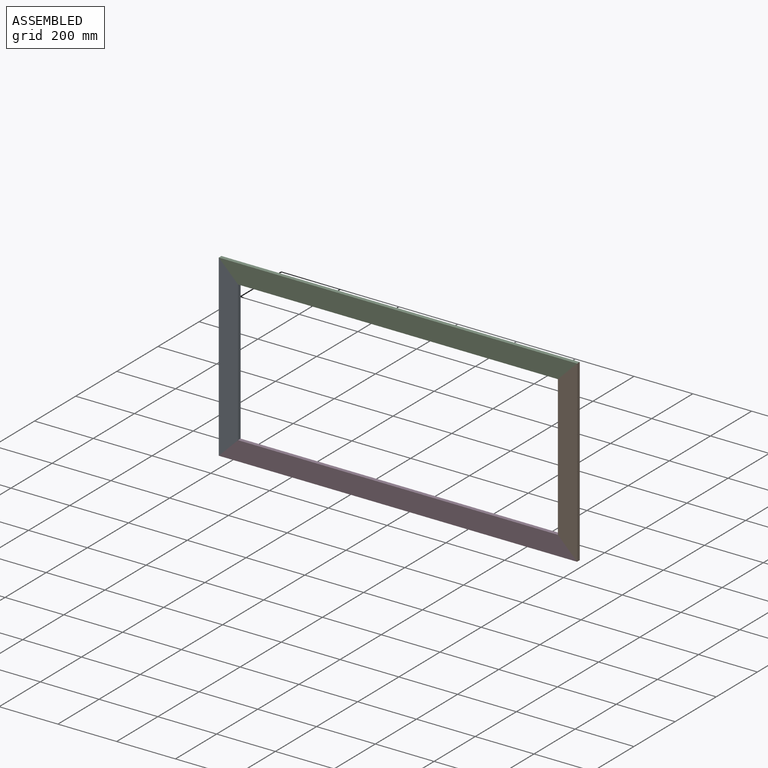
[diagram: assembled view]
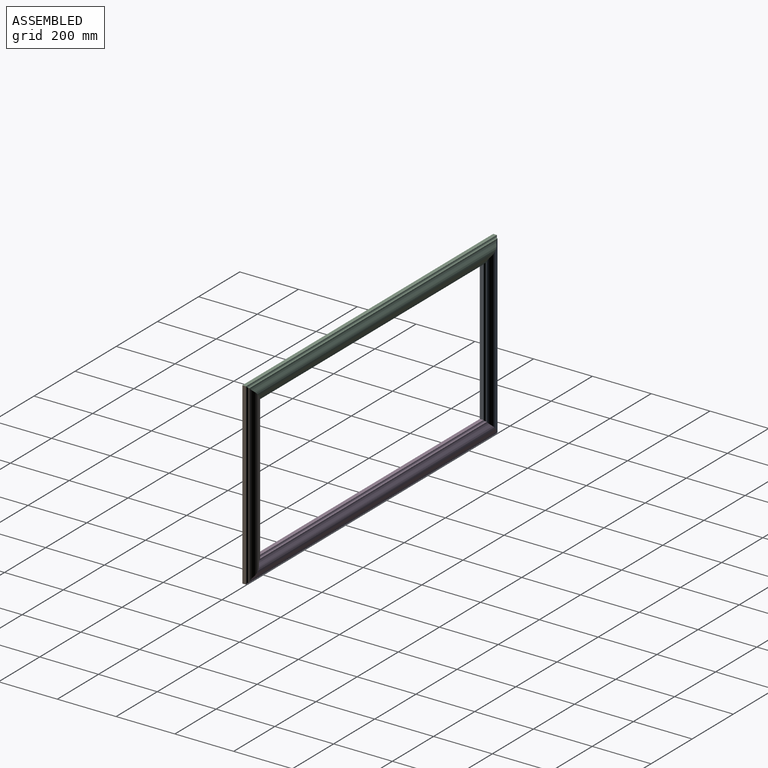
[diagram: assembled view, second angle]
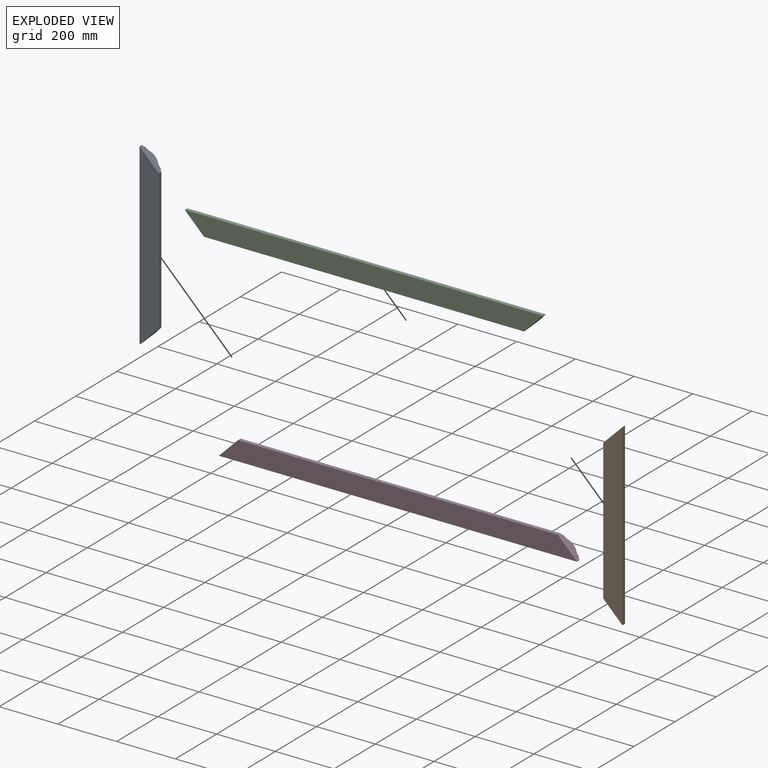
[diagram: exploded view]
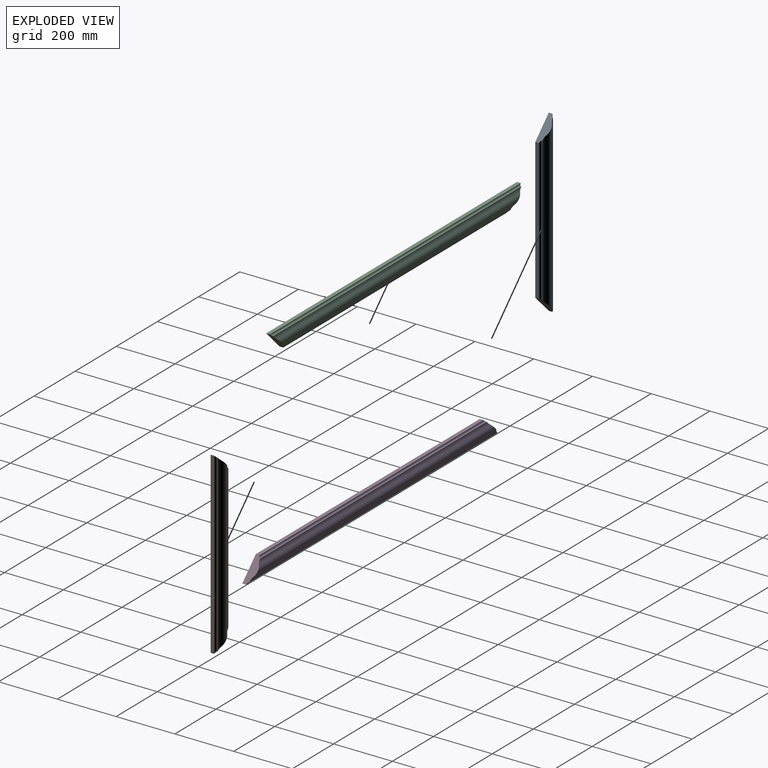
[diagram: exploded view, second angle]
ASSEMBLY  parts=4 mates=3
PART A: 10 faces, bbox 65.4x29.6x609.6 mm
  f0: plane 609.6x65.4mm, normal (0,-1,0), area 35592.9mm2, adj f1,f7,f8,f9
  f1: plane 478.79x12.7mm, normal (1,0,0), area 6080.6mm2, adj f0,f6,f8,f9
  f2: cylinder r=19.05mm len=517.84mm, axis (0,0,-1), area 7352.9mm2, adj f3,f6,f8,f9
  f3: cylinder r=19.05mm len=570.55mm, axis (0,0,-1), area 15836.2mm2, adj f2,f4,f8,f9
  f4: cylinder r=19.05mm len=596.9mm, axis (0,0,-1), area 8483.4mm2, adj f3,f5,f8,f9
  f5: cylinder r=6.35mm len=609.6mm, axis (0,0,-1), area 5999.8mm2, adj f4,f7,f8,f9
  f6: cylinder r=6.35mm len=491.49mm, axis (0,0,-1), area 4856.4mm2, adj f1,f2,f8,f9
  f7: plane 609.6x12.7mm, normal (-1,0,0), area 7741.9mm2, adj f0,f5,f8,f9
  f8: plane 65.4x65.4mm, normal (0.71,0,0.71), area 2066.9mm2, adj f0,f1,f2,f3,f4,f5,f6,f7
  f9: plane 65.4x65.4mm, normal (0.71,0,-0.71), area 2066.9mm2, adj f0,f1,f2,f3,f4,f5,f6,f7
PART B: same geometry as A
PART C: 10 faces, bbox 65.4x29.6x1219.2 mm
  f0: plane 1219.2x65.4mm, normal (0,-1,0), area 75463.5mm2, adj f1,f7,f8,f9
  f1: plane 1088.39x12.7mm, normal (1,0,0), area 13822.6mm2, adj f0,f6,f8,f9
  f2: cylinder r=19.05mm len=1127.44mm, axis (0,0,-1), area 16222.6mm2, adj f3,f6,f8,f9
  f3: cylinder r=19.05mm len=1180.15mm, axis (0,0,-1), area 33575.8mm2, adj f2,f4,f8,f9
  f4: cylinder r=19.05mm len=1206.5mm, axis (0,0,-1), area 17353.1mm2, adj f3,f5,f8,f9
  f5: cylinder r=6.35mm len=1219.2mm, axis (0,0,-1), area 12080.3mm2, adj f4,f7,f8,f9
  f6: cylinder r=6.35mm len=1101.09mm, axis (0,0,-1), area 10936.9mm2, adj f1,f2,f8,f9
  f7: plane 1219.2x12.7mm, normal (-1,0,0), area 15483.8mm2, adj f0,f5,f8,f9
  f8: plane 65.4x65.4mm, normal (0.71,0,-0.71), area 2066.9mm2, adj f0,f1,f2,f3,f4,f5,f6,f7
  f9: plane 65.4x65.4mm, normal (0.71,0,0.71), area 2066.9mm2, adj f0,f1,f2,f3,f4,f5,f6,f7
PART D: same geometry as C
PLACE A at identity fixed
PLACE B rot(axis=(0,1,0),180deg) t=(1153.8,0,609.6)mm
PLACE C rot(axis=(0,1,0),90deg) t=(-32.7,0,576.9)mm
PLACE D rot(axis=(0,-1,0),90deg) t=(1186.5,0,32.7)mm
MATE fastened D.f8 <-> B.f8  axis (0.71,0,0.71) through (1153.8,0,32.7)mm
MATE fastened A.f9 <-> D.f9  axis (0.71,0,-0.71) through (0,0,32.7)mm
MATE fastened C.f9 <-> B.f9  axis (0.71,0,-0.71) through (1153.8,0,576.9)mm
